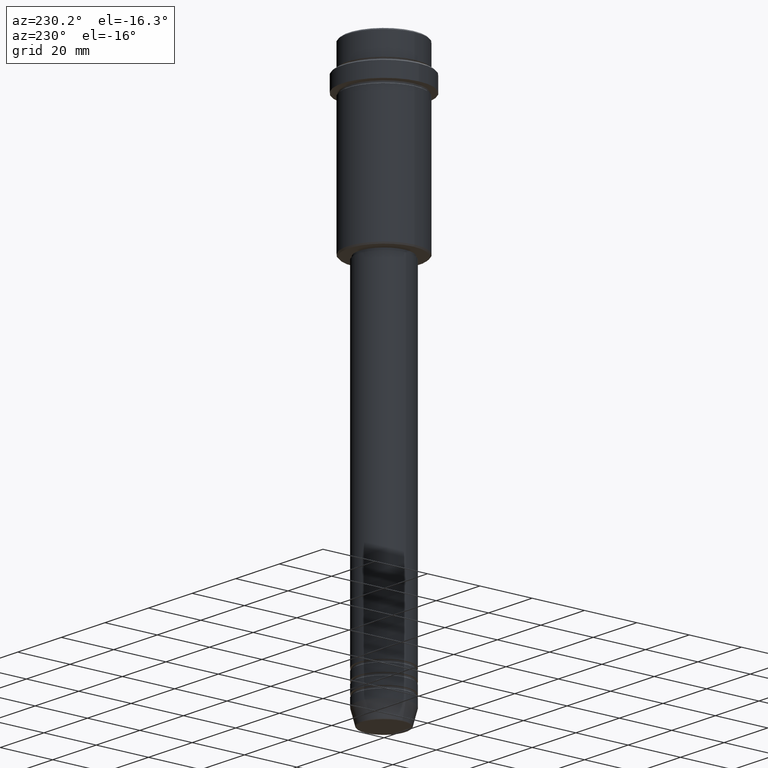
[diagram: clean part render]
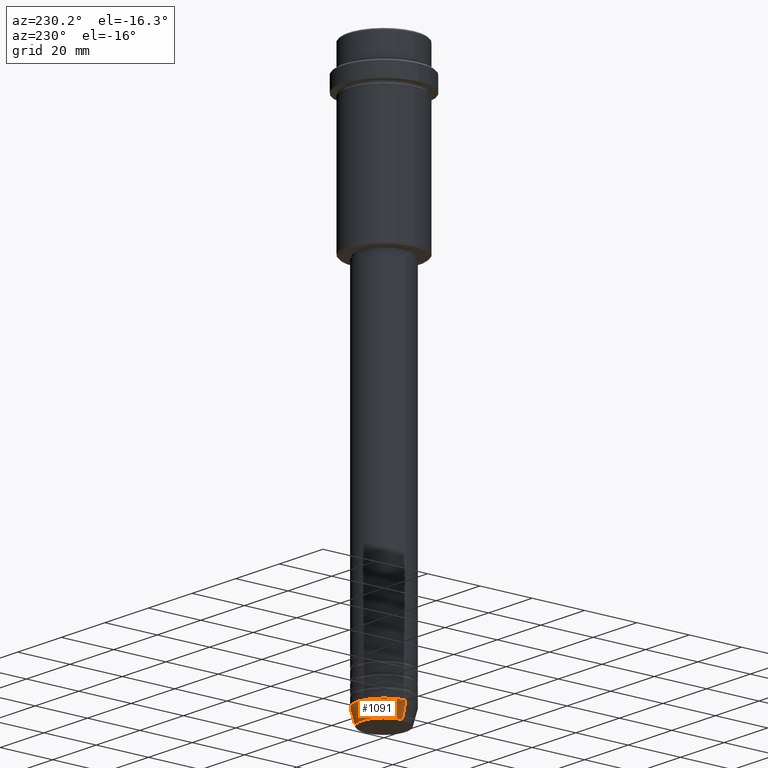
[diagram: same view with one face highlighted and labeled with its STEP entity id]
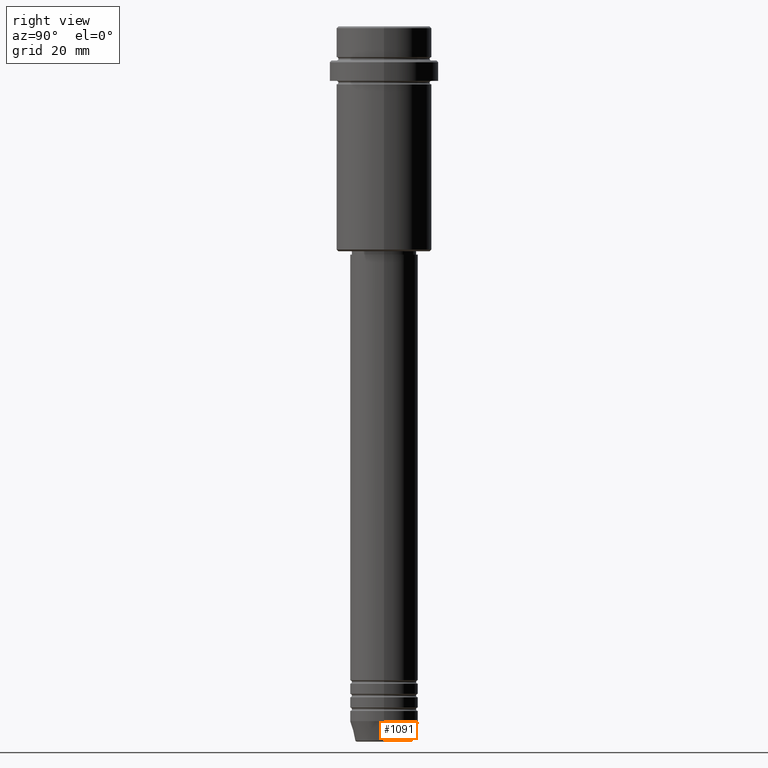
[diagram: same view with one face highlighted and labeled with its STEP entity id]
A machine part, auxiliary view. The second image highlights one B-rep face of the part: STEP entity #1091.
A second angle (right view) of the same face is appended — the face is thin or edge-on in the first view.
In plain terms, the highlighted conical surface has half-angle 15 deg.
Its self-contained STEP definition (entity closure, byte-faithful):
#101 = CARTESIAN_POINT ( 'NONE',  ( 10.00000000000000000, 0.000000000000000000, -204.0000000000000284 ) ) ;
#133 = EDGE_CURVE ( 'NONE', #887, #207, #752, .T. ) ;
#148 = DIRECTION ( 'NONE',  ( 0.2588190451025211281, 0.000000000000000000, 0.9659258262890680902 ) ) ;
#167 = CARTESIAN_POINT ( 'NONE',  ( -8.491604264568309191, 1.132284198685156387E-15, -209.6294095225512990 ) ) ;
#194 = EDGE_LOOP ( 'NONE', ( #683, #1351, #835, #398 ) ) ;
#198 = CARTESIAN_POINT ( 'NONE',  ( 0.000000000000000000, 0.000000000000000000, -209.6294095225512990 ) ) ;
#207 = VERTEX_POINT ( 'NONE', #1076 ) ;
#381 = EDGE_CURVE ( 'NONE', #1365, #207, #668, .T. ) ;
#382 = CARTESIAN_POINT ( 'NONE',  ( 10.00000000000000000, 0.000000000000000000, -204.0000000000000284 ) ) ;
#393 = FACE_OUTER_BOUND ( 'NONE', #194, .T. ) ;
#398 = ORIENTED_EDGE ( 'NONE', *, *, #1114, .F. ) ;
#403 = CIRCLE ( 'NONE', #991, 8.491604264568309191 ) ;
#408 = VERTEX_POINT ( 'NONE', #847 ) ;
#430 = DIRECTION ( 'NONE',  ( 1.000000000000000000, 0.000000000000000000, 0.000000000000000000 ) ) ;
#488 = LINE ( 'NONE', #382, #681 ) ;
#511 = CARTESIAN_POINT ( 'NONE',  ( 0.000000000000000000, 0.000000000000000000, -204.0000000000000284 ) ) ;
#543 = CARTESIAN_POINT ( 'NONE',  ( 0.000000000000000000, 0.000000000000000000, -204.0000000000000284 ) ) ;
#668 = LINE ( 'NONE', #790, #1340 ) ;
#681 = VECTOR ( 'NONE', #148, 1000.000000000000114 ) ;
#683 = ORIENTED_EDGE ( 'NONE', *, *, #1044, .T. ) ;
#734 = DIRECTION ( 'NONE',  ( -0.000000000000000000, -0.000000000000000000, 1.000000000000000000 ) ) ;
#752 = CIRCLE ( 'NONE', #1084, 10.00000000000000000 ) ;
#790 = CARTESIAN_POINT ( 'NONE',  ( -10.00000000000000000, 1.224646799147353256E-15, -204.0000000000000284 ) ) ;
#835 = ORIENTED_EDGE ( 'NONE', *, *, #133, .F. ) ;
#847 = CARTESIAN_POINT ( 'NONE',  ( 8.491604264568309191, 0.000000000000000000, -209.6294095225512990 ) ) ;
#887 = VERTEX_POINT ( 'NONE', #101 ) ;
#982 = DIRECTION ( 'NONE',  ( 1.000000000000000000, 0.000000000000000000, 0.000000000000000000 ) ) ;
#991 = AXIS2_PLACEMENT_3D ( 'NONE', #198, #1411, #430 ) ;
#1044 = EDGE_CURVE ( 'NONE', #408, #1365, #403, .T. ) ;
#1052 = DIRECTION ( 'NONE',  ( 1.000000000000000000, 0.000000000000000000, 0.000000000000000000 ) ) ;
#1076 = CARTESIAN_POINT ( 'NONE',  ( -10.00000000000000000, 1.224646799147353256E-15, -204.0000000000000284 ) ) ;
#1084 = AXIS2_PLACEMENT_3D ( 'NONE', #543, #1407, #982 ) ;
#1091 = ADVANCED_FACE ( 'NONE', ( #393 ), #1382, .T. ) ;
#1114 = EDGE_CURVE ( 'NONE', #408, #887, #488, .T. ) ;
#1307 = DIRECTION ( 'NONE',  ( -0.2588190451025211281, 3.169619151431769872E-17, 0.9659258262890680902 ) ) ;
#1323 = AXIS2_PLACEMENT_3D ( 'NONE', #511, #734, #1052 ) ;
#1340 = VECTOR ( 'NONE', #1307, 1000.000000000000114 ) ;
#1351 = ORIENTED_EDGE ( 'NONE', *, *, #381, .T. ) ;
#1365 = VERTEX_POINT ( 'NONE', #167 ) ;
#1382 = CONICAL_SURFACE ( 'NONE', #1323, 10.00000000000000000, 0.2617993877991498519 ) ;
#1407 = DIRECTION ( 'NONE',  ( -0.000000000000000000, -0.000000000000000000, 1.000000000000000000 ) ) ;
#1411 = DIRECTION ( 'NONE',  ( -0.000000000000000000, -0.000000000000000000, 1.000000000000000000 ) ) ;